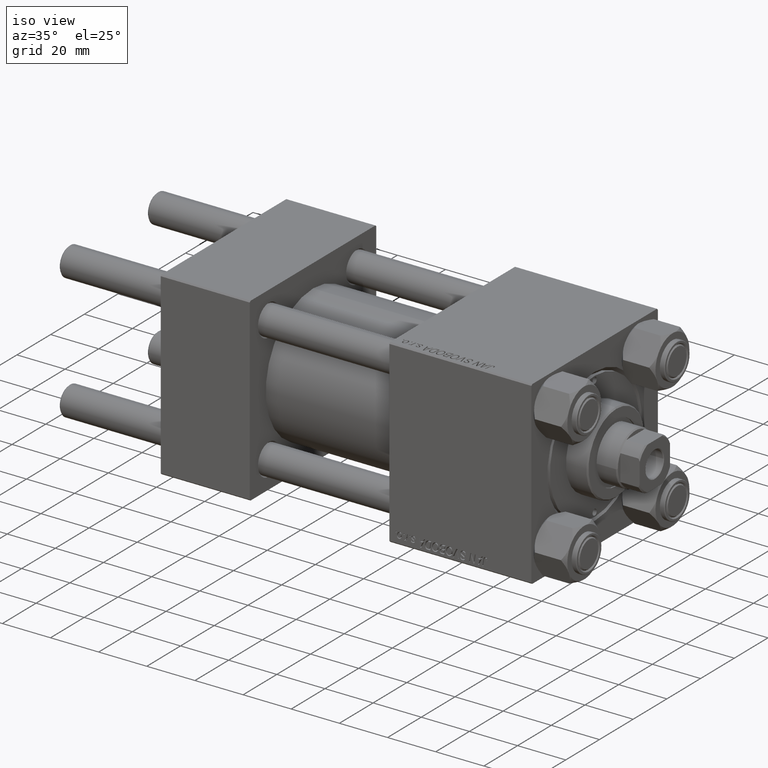
[diagram: clean part render]
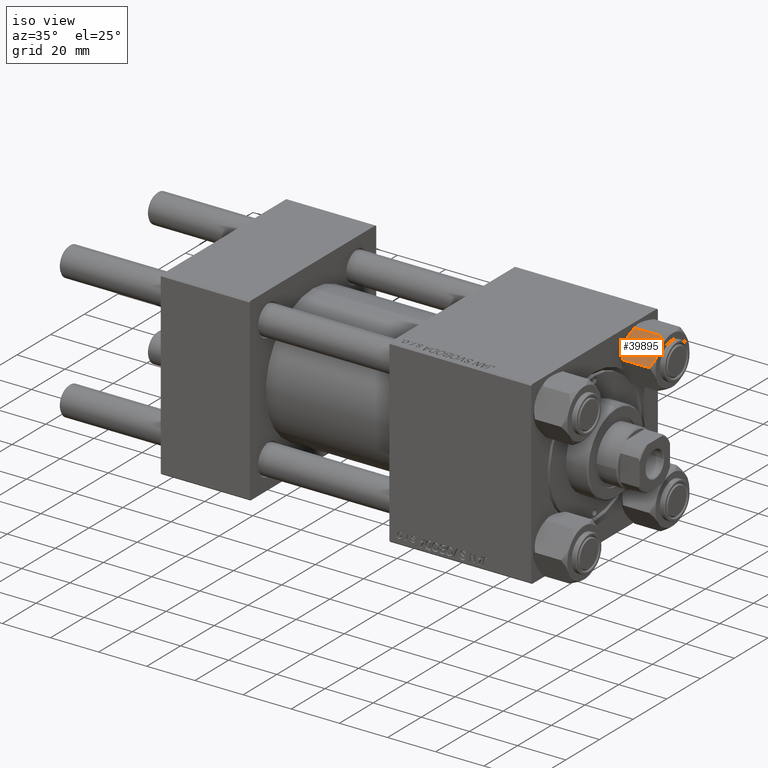
[diagram: same view with one face highlighted and labeled with its STEP entity id]
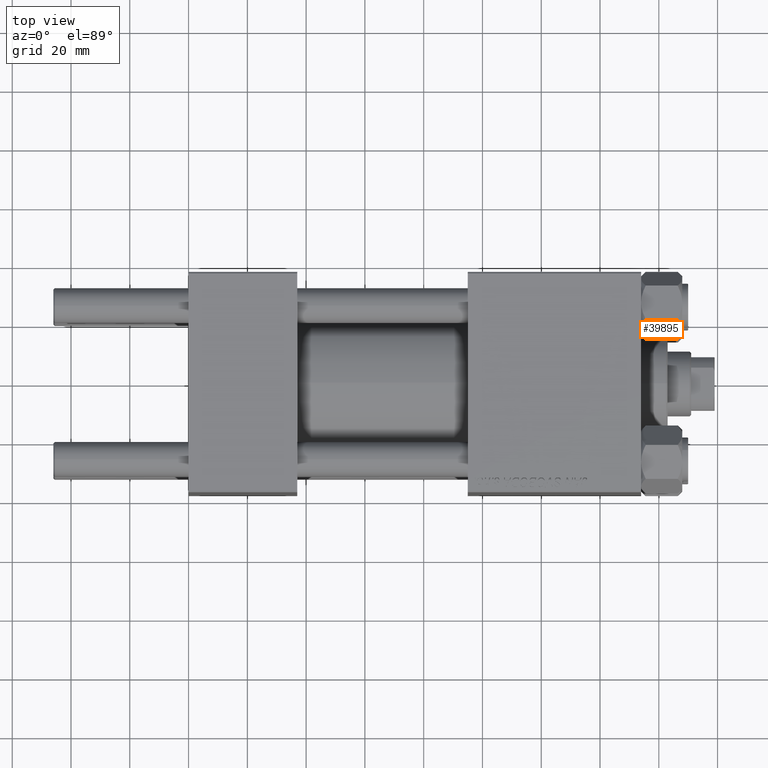
[diagram: same view with one face highlighted and labeled with its STEP entity id]
A machine part, iso view. The second image highlights one B-rep face of the part: STEP entity #39895.
A second angle (top view) of the same face is appended — the face is thin or edge-on in the first view.
In plain terms, the highlighted planar face has unit normal (0, 0.8135, -0.5816).
Its self-contained STEP definition (entity closure, byte-faithful):
#1337 = CARTESIAN_POINT ( 'NONE',  ( -5.809999999999990727, -10.06321519197518199, -14.00000000000000000 ) ) ;
#1406 = VERTEX_POINT ( 'NONE', #13123 ) ;
#4008 = CARTESIAN_POINT ( 'NONE',  ( -9.974696630283190757, -2.849749030213793777, -0.3002673809867424382 ) ) ;
#4968 = VERTEX_POINT ( 'NONE', #38501 ) ;
#5024 = VECTOR ( 'NONE', #43785, 1000.000000000000000 ) ;
#7171 = CARTESIAN_POINT ( 'NONE',  ( -7.455303369716800077, -7.213466161761385109, -13.69973261901325046 ) ) ;
#7419 = CARTESIAN_POINT ( 'NONE',  ( -5.809999999999990727, -10.06321519197518199, -12.44321519197517745 ) ) ;
#7592 = CARTESIAN_POINT ( 'NONE',  ( -6.265018354709766868, -9.275100283241449972, -1.101766453314959149 ) ) ;
#7668 = CARTESIAN_POINT ( 'NONE',  ( -6.265545725125275744, -9.274186850887387479, -12.89876091710046246 ) ) ;
#8077 = CARTESIAN_POINT ( 'NONE',  ( -5.809999999999990727, -10.06321519197518199, -1.556784808024822553 ) ) ;
#9402 = ORIENTED_EDGE ( 'NONE', *, *, #22289, .T. ) ;
#9509 = CARTESIAN_POINT ( 'NONE',  ( -5.809999999999990727, -10.06321519197518199, -12.44321519197517745 ) ) ;
#9743 = EDGE_CURVE ( 'NONE', #34117, #4968, #12942, .T. ) ;
#9909 = VECTOR ( 'NONE', #44331, 1000.000000000000000 ) ;
#11027 = VERTEX_POINT ( 'NONE', #14540 ) ;
#11374 = CARTESIAN_POINT ( 'NONE',  ( -8.714999999999992752, -5.031607595987588333, 0.000000000000000000 ) ) ;
#11402 = B_SPLINE_CURVE_WITH_KNOTS ( 'NONE', 3,
 ( #23506, #30841, #27289, #4008, #15920, #38908, #31087, #11374 ),
 .UNSPECIFIED., .F., .F.,
 ( 4, 2, 2, 4 ),
 ( 2.544312114904568338E-07, 0.003011550106433539924, 0.004517197944044564449, 0.006022845781655589842 ),
 .UNSPECIFIED. ) ;
#11898 = CARTESIAN_POINT ( 'NONE',  ( -6.733375043383487579, -8.463882702393844326, -0.7114554706434568221 ) ) ;
#12942 = LINE ( 'NONE', #28609, #5024 ) ;
#13123 = CARTESIAN_POINT ( 'NONE',  ( -5.809999999999990727, -10.06321519197518199, -1.556784808024822553 ) ) ;
#13162 = DIRECTION ( 'NONE',  ( 0.8660254037844384856, 0.5000000000000003331, 0.000000000000000000 ) ) ;
#13668 = FACE_OUTER_BOUND ( 'NONE', #49752, .T. ) ;
#14540 = CARTESIAN_POINT ( 'NONE',  ( -8.714999999999992752, -5.031607595987588333, 0.000000000000000000 ) ) ;
#15338 = CARTESIAN_POINT ( 'NONE',  ( -8.714999999999992752, -5.031607595987588333, -14.00000000000000000 ) ) ;
#15920 = CARTESIAN_POINT ( 'NONE',  ( -9.729165168613647552, -3.275021996682082825, -0.1903979688073461074 ) ) ;
#19109 = ORIENTED_EDGE ( 'NONE', *, *, #35857, .F. ) ;
#21417 = B_SPLINE_CURVE_WITH_KNOTS ( 'NONE', 3,
 ( #30616, #27554, #27074, #11898, #7592, #8077 ),
 .UNSPECIFIED., .F., .F.,
 ( 4, 2, 4 ),
 ( 0.006022845781655589842, 0.009013049135303640227, 0.01200325248895168714 ),
 .UNSPECIFIED. ) ;
#21897 = EDGE_CURVE ( 'NONE', #4968, #11027, #11402, .T. ) ;
#22289 = EDGE_CURVE ( 'NONE', #27459, #1406, #40790, .T. ) ;
#22628 = CARTESIAN_POINT ( 'NONE',  ( -7.700834831386339729, -6.788193195293098725, -13.80960203119265017 ) ) ;
#23123 = CARTESIAN_POINT ( 'NONE',  ( -8.202333004087893897, -5.919572880271055659, -13.96005881939308679 ) ) ;
#23506 = CARTESIAN_POINT ( 'NONE',  ( -11.61999999999999922, -1.565987599140169687E-18, -1.556784808024820776 ) ) ;
#23930 = ORIENTED_EDGE ( 'NONE', *, *, #37539, .F. ) ;
#24049 = CARTESIAN_POINT ( 'NONE',  ( -11.16498164529022219, -0.7881149087337293579, -12.89823354668504329 ) ) ;
#24480 = ORIENTED_EDGE ( 'NONE', *, *, #21897, .F. ) ;
#26894 = CARTESIAN_POINT ( 'NONE',  ( -6.731401448974980717, -8.467301068182917945, -13.28585617404752917 ) ) ;
#27074 = CARTESIAN_POINT ( 'NONE',  ( -7.713000053756299046, -6.767122412062954062, -0.1545239700039889863 ) ) ;
#27095 = CARTESIAN_POINT ( 'NONE',  ( -9.220295946303425083, -4.156409344131452244, -13.99999999999999645 ) ) ;
#27289 = CARTESIAN_POINT ( 'NONE',  ( -10.69859855102501101, -1.595914123792264938, -0.7141438259524708343 ) ) ;
#27459 = VERTEX_POINT ( 'NONE', #9509 ) ;
#27554 = CARTESIAN_POINT ( 'NONE',  ( -8.209704053696565751, -5.906805847843727086, -2.149769620131414261E-15 ) ) ;
#28412 = CARTESIAN_POINT ( 'NONE',  ( -11.61999999999999922, 4.243578825136429979E-17, -12.44321519197517922 ) ) ;
#28584 = DIRECTION ( 'NONE',  ( -0.5000000000000003331, 0.8660254037844384856, 0.000000000000000000 ) ) ;
#28609 = CARTESIAN_POINT ( 'NONE',  ( -11.61999999999999922, 6.036006524886462134E-17, -14.00000000000000000 ) ) ;
#29932 = ORIENTED_EDGE ( 'NONE', *, *, #9743, .F. ) ;
#30616 = CARTESIAN_POINT ( 'NONE',  ( -8.714999999999992752, -5.031607595987588333, 0.000000000000000000 ) ) ;
#30841 = CARTESIAN_POINT ( 'NONE',  ( -11.16445427487471065, -0.7890283410877966253, -1.101239082899537314 ) ) ;
#31087 = CARTESIAN_POINT ( 'NONE',  ( -8.969430103550379840, -4.590921729663317130, -2.185345003916095664E-15 ) ) ;
#31273 = EDGE_CURVE ( 'NONE', #36341, #34117, #43933, .T. ) ;
#31626 = CARTESIAN_POINT ( 'NONE',  ( -8.714999999999992752, -5.031607595987588333, -14.00000000000000000 ) ) ;
#33317 = ORIENTED_EDGE ( 'NONE', *, *, #31273, .F. ) ;
#34117 = VERTEX_POINT ( 'NONE', #28412 ) ;
#34458 = B_SPLINE_CURVE_WITH_KNOTS ( 'NONE', 3,
 ( #7419, #7668, #26894, #7171, #22628, #23123, #34488, #38523 ),
 .UNSPECIFIED., .F., .F.,
 ( 4, 2, 2, 4 ),
 ( 2.544312114902182352E-07, 0.003011550106433542959, 0.004517197944044567919, 0.006022845781655594179 ),
 .UNSPECIFIED. ) ;
#34488 = CARTESIAN_POINT ( 'NONE',  ( -8.460569896449610994, -5.472293462311864864, -13.99999999999999822 ) ) ;
#34917 = CARTESIAN_POINT ( 'NONE',  ( -10.69662495661649793, -1.599332489581332339, -13.28854452935654429 ) ) ;
#35413 = CARTESIAN_POINT ( 'NONE',  ( -11.61999999999999922, 4.243578825136429979E-17, -12.44321519197517922 ) ) ;
#35857 = EDGE_CURVE ( 'NONE', #11027, #1406, #21417, .T. ) ;
#36341 = VERTEX_POINT ( 'NONE', #15338 ) ;
#37539 = EDGE_CURVE ( 'NONE', #27459, #36341, #34458, .T. ) ;
#38501 = CARTESIAN_POINT ( 'NONE',  ( -11.61999999999999922, -1.565987599140169687E-18, -1.556784808024820776 ) ) ;
#38523 = CARTESIAN_POINT ( 'NONE',  ( -8.714999999999992752, -5.031607595987588333, -14.00000000000000000 ) ) ;
#38644 = AXIS2_PLACEMENT_3D ( 'NONE', #47826, #13162, #28584 ) ;
#38908 = CARTESIAN_POINT ( 'NONE',  ( -9.227666995912098713, -4.143642311704126335, -0.03994118060691215222 ) ) ;
#39895 = ADVANCED_FACE ( 'NONE', ( #13668 ), #44263, .F. ) ;
#40790 = LINE ( 'NONE', #1337, #9909 ) ;
#43785 = DIRECTION ( 'NONE',  ( -0.000000000000000000, -0.000000000000000000, 1.000000000000000000 ) ) ;
#43933 = B_SPLINE_CURVE_WITH_KNOTS ( 'NONE', 3,
 ( #31626, #27095, #47069, #34917, #24049, #35413 ),
 .UNSPECIFIED., .F., .F.,
 ( 4, 2, 4 ),
 ( 0.006022845781655594179, 0.009013049135303641962, 0.01200325248895168888 ),
 .UNSPECIFIED. ) ;
#44263 = PLANE ( 'NONE',  #38644 ) ;
#44331 = DIRECTION ( 'NONE',  ( -0.000000000000000000, -0.000000000000000000, 1.000000000000000000 ) ) ;
#47069 = CARTESIAN_POINT ( 'NONE',  ( -9.716999946243692676, -3.296092779912225712, -13.84547602999601246 ) ) ;
#47826 = CARTESIAN_POINT ( 'NONE',  ( -5.809999999999990727, -10.06321519197518199, -14.00000000000000000 ) ) ;
#49752 = EDGE_LOOP ( 'NONE', ( #23930, #9402, #19109, #24480, #29932, #33317 ) ) ;